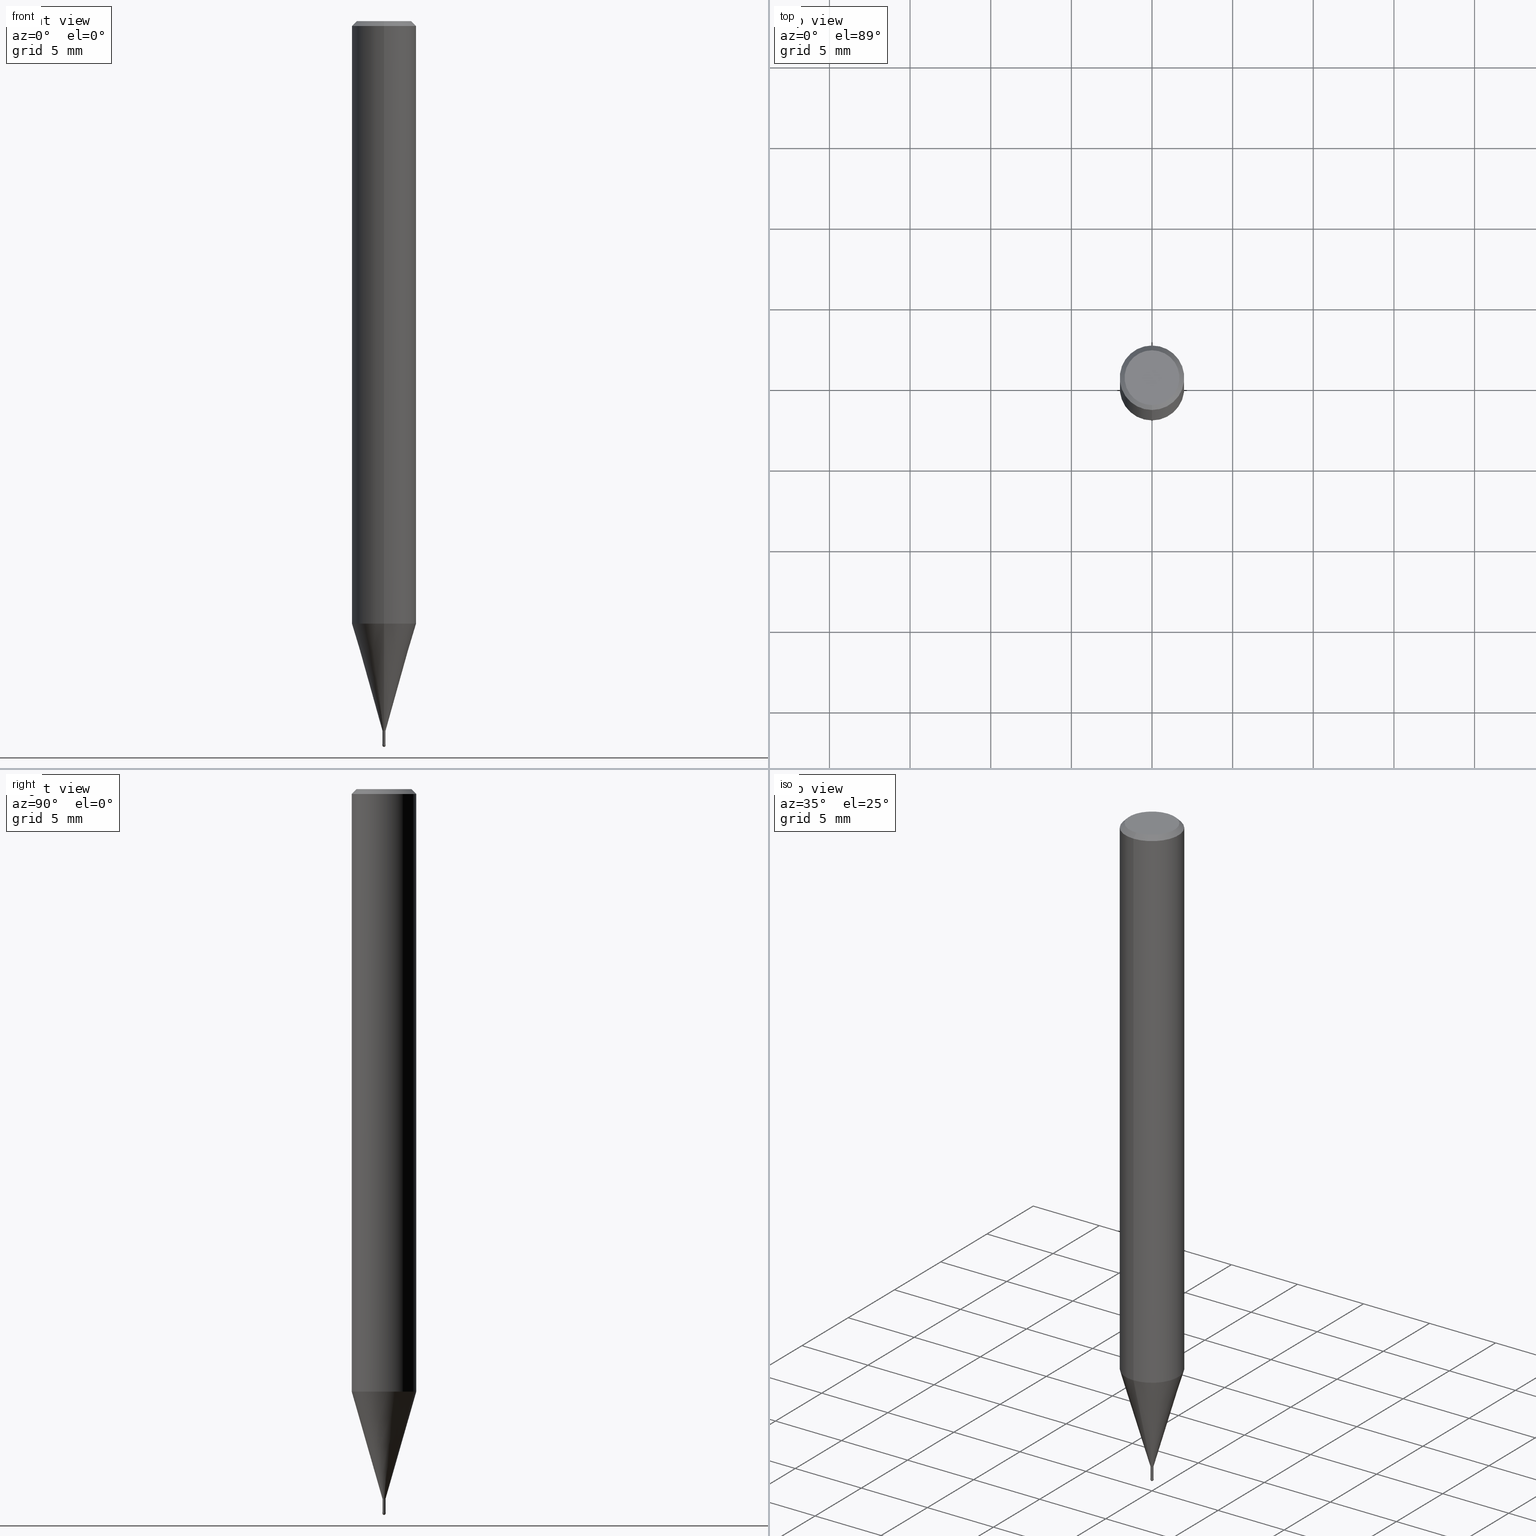
[diagram: canonical four-view strip — front | top / right | iso, engineering-drawing reading convention]
A machine part, canonical four-view strip (front | top / right | iso — engineering-drawing reading convention). The complete STEP part file that produces these views, byte-faithful:
ISO-10303-21;
HEADER;
FILE_DESCRIPTION(('no description'),'unknown implementation level');
FILE_NAME('HSLB2002-010-Huellk.stp','  ',('CIMSOURCE GmbH'),('CADClick - KiM GmbH - www.kimweb.de'),'unknown preprocess','ACIS','unknown authorization');
FILE_SCHEMA(('automotive_design'));
ENDSEC;
DATA;
#1=MECHANICAL_DESIGN_GEOMETRIC_PRESENTATION_REPRESENTATION(' ',(#14,#15,#16,#17,#18,#19,#20,#21,#22,#23,#24,#25,#26,#27,#28,#29,#30,#31,#32,#33,#34,#35,#36,#37,#38,#39,#40,#41,#42,#43,#44,#45,#46,#47,#48,#49,#50,#51,#52,#53,#54,#55,#56,#57,#58,#59,#60,#61,#62,#63,#64,#65,#66,#67,#68,#69,#70,#71,#72,#73,#74),#10);
#2=PRODUCT_DEFINITION_CONTEXT('',#75,'design');
#3=APPLICATION_PROTOCOL_DEFINITION('INTERNATIONAL STANDARD','automotive_design',1994,#75);
#4=PRODUCT_CATEGORY_RELATIONSHIP('NONE','NONE',#76,#77);
#5=SHAPE_DEFINITION_REPRESENTATION(#78,#79);
#6=PRODUCT_DEFINITION_CONTEXT('',#80,'design');
#7=APPLICATION_PROTOCOL_DEFINITION('INTERNATIONAL STANDARD','automotive_design',1994,#80);
#8=PRODUCT_CATEGORY_RELATIONSHIP('NONE','NONE',#81,#82);
#9=SHAPE_DEFINITION_REPRESENTATION(#83,#84);
#10= (GEOMETRIC_REPRESENTATION_CONTEXT(3)GLOBAL_UNCERTAINTY_ASSIGNED_CONTEXT((#87))GLOBAL_UNIT_ASSIGNED_CONTEXT((#89,#90,#91))REPRESENTATION_CONTEXT('NONE','WORKSPACE'));
#14=STYLED_ITEM('',(#93),#94);
#15=STYLED_ITEM('',(#95),#96);
#16=STYLED_ITEM('',(#97),#98);
#17=STYLED_ITEM('',(#99),#100);
#18=STYLED_ITEM('',(#101),#102);
#19=STYLED_ITEM('',(#103),#104);
#20=STYLED_ITEM('',(#105),#106);
#21=STYLED_ITEM('',(#107),#108);
#22=STYLED_ITEM('',(#109),#110);
#23=STYLED_ITEM('',(#111),#112);
#24=STYLED_ITEM('',(#113),#114);
#25=STYLED_ITEM('',(#115),#116);
#26=STYLED_ITEM('',(#117),#118);
#27=STYLED_ITEM('',(#119),#120);
#28=STYLED_ITEM('',(#121),#122);
#29=STYLED_ITEM('',(#123),#124);
#30=STYLED_ITEM('',(#125),#126);
#31=STYLED_ITEM('',(#127),#128);
#32=STYLED_ITEM('',(#129),#130);
#33=STYLED_ITEM('',(#131),#132);
#34=STYLED_ITEM('',(#133),#134);
#35=STYLED_ITEM('',(#135),#136);
#36=STYLED_ITEM('',(#137),#138);
#37=STYLED_ITEM('',(#139),#140);
#38=STYLED_ITEM('',(#141),#142);
#39=STYLED_ITEM('',(#143),#144);
#40=STYLED_ITEM('',(#145),#146);
#41=STYLED_ITEM('',(#147),#148);
#42=STYLED_ITEM('',(#149),#150);
#43=STYLED_ITEM('',(#151),#152);
#44=STYLED_ITEM('',(#153),#154);
#45=STYLED_ITEM('',(#155),#156);
#46=STYLED_ITEM('',(#157),#158);
#47=STYLED_ITEM('',(#159),#160);
#48=STYLED_ITEM('',(#161),#162);
#49=STYLED_ITEM('',(#163),#164);
#50=STYLED_ITEM('',(#165),#166);
#51=STYLED_ITEM('',(#167),#168);
#52=STYLED_ITEM('',(#169),#170);
#53=STYLED_ITEM('',(#171),#172);
#54=STYLED_ITEM('',(#173),#174);
#55=STYLED_ITEM('',(#175),#176);
#56=STYLED_ITEM('',(#177),#178);
#57=STYLED_ITEM('',(#179),#180);
#58=STYLED_ITEM('',(#181),#182);
#59=STYLED_ITEM('',(#183),#184);
#60=STYLED_ITEM('',(#185),#186);
#61=STYLED_ITEM('',(#187),#188);
#62=STYLED_ITEM('',(#189),#190);
#63=STYLED_ITEM('',(#191),#192);
#64=STYLED_ITEM('',(#193),#194);
#65=STYLED_ITEM('',(#195),#196);
#66=STYLED_ITEM('',(#197),#198);
#67=STYLED_ITEM('',(#199),#200);
#68=STYLED_ITEM('',(#201),#202);
#69=STYLED_ITEM('',(#203),#204);
#70=STYLED_ITEM('',(#205),#206);
#71=STYLED_ITEM('',(#207),#208);
#72=STYLED_ITEM('',(#209),#210);
#73=STYLED_ITEM('',(#211),#212);
#74=STYLED_ITEM('',(#213),#214);
#75=APPLICATION_CONTEXT(' ');
#76=PRODUCT_CATEGORY('part','NONE');
#77=PRODUCT_RELATED_PRODUCT_CATEGORY('detail',' ',(#215));
#78=PRODUCT_DEFINITION_SHAPE('NONE','NONE',#216);
#79=ADVANCED_BREP_SHAPE_REPRESENTATION('1',(#196,#217),#10);
#80=APPLICATION_CONTEXT(' ');
#81=PRODUCT_CATEGORY('part','NONE');
#82=PRODUCT_RELATED_PRODUCT_CATEGORY('detail',' ',(#218));
#83=PRODUCT_DEFINITION_SHAPE('NONE','NONE',#219);
#84=ADVANCED_BREP_SHAPE_REPRESENTATION('2',(#198,#220),#10);
#87=UNCERTAINTY_MEASURE_WITH_UNIT(LENGTH_MEASURE(1.0E-006),#89,'','');
#89= (CONVERSION_BASED_UNIT('MILLIMETRE',#223)LENGTH_UNIT()NAMED_UNIT(#226));
#90= (NAMED_UNIT(#228)PLANE_ANGLE_UNIT()SI_UNIT($,.RADIAN.));
#91= (NAMED_UNIT(#228)SOLID_ANGLE_UNIT()SI_UNIT($,.STERADIAN.));
#93=PRESENTATION_STYLE_ASSIGNMENT((#234));
#94=ADVANCED_FACE('',(#235),#236,.T.);
#95=PRESENTATION_STYLE_ASSIGNMENT((#237));
#96=VERTEX_POINT('',#238);
#97=PRESENTATION_STYLE_ASSIGNMENT((#239));
#98=VERTEX_POINT('',#240);
#99=PRESENTATION_STYLE_ASSIGNMENT((#241));
#100=VERTEX_POINT('',#242);
#101=PRESENTATION_STYLE_ASSIGNMENT((#243));
#102=ADVANCED_FACE('',(#244),#245,.T.);
#103=PRESENTATION_STYLE_ASSIGNMENT((#246));
#104=EDGE_CURVE('',#96,#162,#247,.T.);
#105=PRESENTATION_STYLE_ASSIGNMENT((#248));
#106=ADVANCED_FACE('',(#249,#250),#251,.T.);
#107=PRESENTATION_STYLE_ASSIGNMENT((#252));
#108=EDGE_CURVE('',#98,#176,#253,.T.);
#109=PRESENTATION_STYLE_ASSIGNMENT((#254));
#110=ADVANCED_FACE('',(#255),#256,.T.);
#111=PRESENTATION_STYLE_ASSIGNMENT((#257));
#112=VERTEX_POINT('',#258);
#113=PRESENTATION_STYLE_ASSIGNMENT((#259));
#114=ADVANCED_FACE('',(#260),#261,.T.);
#115=PRESENTATION_STYLE_ASSIGNMENT((#262));
#116=EDGE_CURVE('',#112,#208,#263,.T.);
#117=PRESENTATION_STYLE_ASSIGNMENT((#264));
#118=EDGE_CURVE('',#98,#160,#265,.T.);
#119=PRESENTATION_STYLE_ASSIGNMENT((#266));
#120=ADVANCED_FACE('',(#267),#268,.T.);
#121=PRESENTATION_STYLE_ASSIGNMENT((#269));
#122=EDGE_CURVE('',#184,#204,#270,.T.);
#123=PRESENTATION_STYLE_ASSIGNMENT((#271));
#124=EDGE_CURVE('',#204,#184,#272,.T.);
#125=PRESENTATION_STYLE_ASSIGNMENT((#273));
#126=EDGE_CURVE('',#208,#132,#274,.T.);
#127=PRESENTATION_STYLE_ASSIGNMENT((#275));
#128=EDGE_CURVE('',#178,#192,#276,.T.);
#129=PRESENTATION_STYLE_ASSIGNMENT((#277));
#130=ADVANCED_FACE('',(#278),#279,.T.);
#131=PRESENTATION_STYLE_ASSIGNMENT((#280));
#132=VERTEX_POINT('',#281);
#133=PRESENTATION_STYLE_ASSIGNMENT((#282));
#134=EDGE_CURVE('',#132,#174,#283,.T.);
#135=PRESENTATION_STYLE_ASSIGNMENT((#284));
#136=VERTEX_POINT('',#285);
#137=PRESENTATION_STYLE_ASSIGNMENT((#286));
#138=ADVANCED_FACE('',(#287),#288,.T.);
#139=PRESENTATION_STYLE_ASSIGNMENT((#289));
#140=EDGE_CURVE('',#192,#204,#290,.T.);
#141=PRESENTATION_STYLE_ASSIGNMENT((#291));
#142=EDGE_CURVE('',#136,#176,#292,.T.);
#143=PRESENTATION_STYLE_ASSIGNMENT((#293));
#144=ADVANCED_FACE('',(#294),#295,.T.);
#145=PRESENTATION_STYLE_ASSIGNMENT((#296));
#146=EDGE_CURVE('',#184,#178,#297,.T.);
#147=PRESENTATION_STYLE_ASSIGNMENT((#298));
#148=EDGE_CURVE('',#160,#98,#299,.T.);
#149=PRESENTATION_STYLE_ASSIGNMENT((#300));
#150=EDGE_CURVE('',#174,#112,#301,.T.);
#151=PRESENTATION_STYLE_ASSIGNMENT((#302));
#152=ADVANCED_FACE('',(#303),#304,.T.);
#153=PRESENTATION_STYLE_ASSIGNMENT((#305));
#154=EDGE_CURVE('',#112,#174,#306,.T.);
#155=PRESENTATION_STYLE_ASSIGNMENT((#307));
#156=EDGE_CURVE('',#162,#98,#308,.T.);
#157=PRESENTATION_STYLE_ASSIGNMENT((#309));
#158=EDGE_CURVE('',#192,#178,#310,.T.);
#159=PRESENTATION_STYLE_ASSIGNMENT((#311));
#160=VERTEX_POINT('',#312);
#161=PRESENTATION_STYLE_ASSIGNMENT((#313));
#162=VERTEX_POINT('',#314);
#163=PRESENTATION_STYLE_ASSIGNMENT((#315));
#164=VERTEX_POINT('',#316);
#165=PRESENTATION_STYLE_ASSIGNMENT((#317));
#166=ADVANCED_FACE('',(#318),#319,.T.);
#167=PRESENTATION_STYLE_ASSIGNMENT((#320));
#168=ADVANCED_FACE('',(#321),#322,.T.);
#169=PRESENTATION_STYLE_ASSIGNMENT((#323));
#170=ADVANCED_FACE('',(#324),#325,.T.);
#171=PRESENTATION_STYLE_ASSIGNMENT((#326));
#172=EDGE_CURVE('',#160,#96,#327,.T.);
#173=PRESENTATION_STYLE_ASSIGNMENT((#328));
#174=VERTEX_POINT('',#329);
#175=PRESENTATION_STYLE_ASSIGNMENT((#330));
#176=VERTEX_POINT('',#331);
#177=PRESENTATION_STYLE_ASSIGNMENT((#332));
#178=VERTEX_POINT('',#333);
#179=PRESENTATION_STYLE_ASSIGNMENT((#334));
#180=EDGE_CURVE('',#164,#100,#335,.T.);
#181=PRESENTATION_STYLE_ASSIGNMENT((#336));
#182=EDGE_CURVE('',#132,#208,#337,.T.);
#183=PRESENTATION_STYLE_ASSIGNMENT((#338));
#184=VERTEX_POINT('',#339);
#185=PRESENTATION_STYLE_ASSIGNMENT((#340));
#186=ADVANCED_FACE('',(#341),#342,.T.);
#187=PRESENTATION_STYLE_ASSIGNMENT((#343));
#188=EDGE_CURVE('',#176,#136,#344,.T.);
#189=PRESENTATION_STYLE_ASSIGNMENT((#345));
#190=EDGE_CURVE('',#162,#96,#346,.T.);
#191=PRESENTATION_STYLE_ASSIGNMENT((#347));
#192=VERTEX_POINT('',#348);
#193=PRESENTATION_STYLE_ASSIGNMENT((#349));
#194=EDGE_CURVE('',#100,#164,#350,.T.);
#195=PRESENTATION_STYLE_ASSIGNMENT((#351));
#196=MANIFOLD_SOLID_BREP('1',#352);
#197=PRESENTATION_STYLE_ASSIGNMENT((#353));
#198=MANIFOLD_SOLID_BREP('2',#354);
#199=PRESENTATION_STYLE_ASSIGNMENT((#355));
#200=EDGE_CURVE('',#112,#174,#356,.T.);
#201=PRESENTATION_STYLE_ASSIGNMENT((#357));
#202=EDGE_CURVE('',#100,#184,#358,.T.);
#203=PRESENTATION_STYLE_ASSIGNMENT((#359));
#204=VERTEX_POINT('',#360);
#205=PRESENTATION_STYLE_ASSIGNMENT((#361));
#206=ADVANCED_FACE('',(#362),#363,.T.);
#207=PRESENTATION_STYLE_ASSIGNMENT((#364));
#208=VERTEX_POINT('',#365);
#209=PRESENTATION_STYLE_ASSIGNMENT((#366));
#210=ADVANCED_FACE('',(#367),#368,.T.);
#211=PRESENTATION_STYLE_ASSIGNMENT((#369));
#212=EDGE_CURVE('',#204,#164,#370,.T.);
#213=PRESENTATION_STYLE_ASSIGNMENT((#371));
#214=EDGE_CURVE('',#136,#160,#372,.T.);
#215=PRODUCT('1','1','PART-1-DESC',(#373));
#216=PRODUCT_DEFINITION('NONE','NONE',#374,#2);
#217=AXIS2_PLACEMENT_3D('',#375,#376,#377);
#218=PRODUCT('2','2','PART-2-DESC',(#378));
#219=PRODUCT_DEFINITION('NONE','NONE',#379,#6);
#220=AXIS2_PLACEMENT_3D('',#380,#381,#382);
#223=LENGTH_MEASURE_WITH_UNIT(LENGTH_MEASURE(1.0),#383);
#226=DIMENSIONAL_EXPONENTS(1.0,0.0,0.0,0.0,0.0,0.0,0.0);
#228=DIMENSIONAL_EXPONENTS(0.0,0.0,0.0,0.0,0.0,0.0,0.0);
#234=SURFACE_STYLE_USAGE(.BOTH.,#384);
#235=FACE_OUTER_BOUND('',#385,.T.);
#236=CONICAL_SURFACE('',#386,1.04745,0.279233718115795);
#237=POINT_STYLE(' ',#387,POSITIVE_LENGTH_MEASURE(1.0E-006),#388);
#238=CARTESIAN_POINT('',(2.44915147732706E-016,-1.99995,-37.356));
#239=POINT_STYLE(' ',#389,POSITIVE_LENGTH_MEASURE(1.0E-006),#390);
#240=CARTESIAN_POINT('',(0.0,0.09495,-44.0));
#241=POINT_STYLE(' ',#391,POSITIVE_LENGTH_MEASURE(1.0E-006),#392);
#242=CARTESIAN_POINT('',(2.44921270764475E-016,-2.0,-37.356));
#243=SURFACE_STYLE_USAGE(.BOTH.,#393);
#244=FACE_OUTER_BOUND('',#394,.T.);
#245=SPHERICAL_SURFACE('',#395,0.1);
#246=CURVE_STYLE('',#396,POSITIVE_LENGTH_MEASURE(1.0E-006),#397);
#247=CIRCLE('',#398,1.99995);
#248=SURFACE_STYLE_USAGE(.BOTH.,#399);
#249=FACE_OUTER_BOUND('',#400,.T.);
#250=FACE_BOUND('',#401,.T.);
#251=PLANE('',#402);
#252=CURVE_STYLE('',#403,POSITIVE_LENGTH_MEASURE(1.0E-006),#404);
#253=LINE('',#405,#406);
#254=SURFACE_STYLE_USAGE(.BOTH.,#407);
#255=FACE_OUTER_BOUND('',#408,.T.);
#256=SPHERICAL_SURFACE('',#409,0.1);
#257=POINT_STYLE(' ',#410,POSITIVE_LENGTH_MEASURE(1.0E-006),#411);
#258=CARTESIAN_POINT('',(1.22460635382238E-017,-0.1,-44.9));
#259=SURFACE_STYLE_USAGE(.BOTH.,#412);
#260=FACE_OUTER_BOUND('',#413,.T.);
#261=PLANE('',#414);
#262=CURVE_STYLE('',#415,POSITIVE_LENGTH_MEASURE(1.0E-006),#416);
#263=LINE('',#417,#418);
#264=CURVE_STYLE('',#419,POSITIVE_LENGTH_MEASURE(1.0E-006),#420);
#265=CIRCLE('',#421,0.09495);
#266=SURFACE_STYLE_USAGE(.BOTH.,#422);
#267=FACE_OUTER_BOUND('',#423,.T.);
#268=CONICAL_SURFACE('',#424,0.09995,0.00166666512345941);
#269=CURVE_STYLE('',#425,POSITIVE_LENGTH_MEASURE(1.0E-006),#426);
#270=CIRCLE('',#427,2.0);
#271=CURVE_STYLE('',#428,POSITIVE_LENGTH_MEASURE(1.0E-006),#429);
#272=CIRCLE('',#430,2.0);
#273=CURVE_STYLE('',#431,POSITIVE_LENGTH_MEASURE(1.0E-006),#432);
#274=CIRCLE('',#433,0.0999);
#275=CURVE_STYLE('',#434,POSITIVE_LENGTH_MEASURE(1.0E-006),#435);
#276=CIRCLE('',#436,1.7);
#277=SURFACE_STYLE_USAGE(.BOTH.,#437);
#278=FACE_OUTER_BOUND('',#438,.T.);
#279=CYLINDRICAL_SURFACE('',#439,0.09495);
#280=POINT_STYLE(' ',#440,POSITIVE_LENGTH_MEASURE(1.0E-006),#441);
#281=CARTESIAN_POINT('',(0.0,0.0999,-44.84));
#282=CURVE_STYLE('',#442,POSITIVE_LENGTH_MEASURE(1.0E-006),#443);
#283=LINE('',#444,#445);
#284=POINT_STYLE(' ',#446,POSITIVE_LENGTH_MEASURE(1.0E-006),#447);
#285=CARTESIAN_POINT('',(1.16276373295435E-017,-0.09495,-44.84));
#286=SURFACE_STYLE_USAGE(.BOTH.,#448);
#287=FACE_OUTER_BOUND('',#449,.T.);
#288=PLANE('',#450);
#289=CURVE_STYLE('',#451,POSITIVE_LENGTH_MEASURE(1.0E-006),#452);
#290=LINE('',#453,#454);
#291=CURVE_STYLE('',#455,POSITIVE_LENGTH_MEASURE(1.0E-006),#456);
#292=CIRCLE('',#457,0.09495);
#293=SURFACE_STYLE_USAGE(.BOTH.,#458);
#294=FACE_OUTER_BOUND('',#459,.T.);
#295=CYLINDRICAL_SURFACE('',#460,2.0);
#296=CURVE_STYLE('',#461,POSITIVE_LENGTH_MEASURE(1.0E-006),#462);
#297=LINE('',#463,#464);
#298=CURVE_STYLE('',#465,POSITIVE_LENGTH_MEASURE(1.0E-006),#466);
#299=CIRCLE('',#467,0.09495);
#300=CURVE_STYLE('',#468,POSITIVE_LENGTH_MEASURE(1.0E-006),#469);
#301=CIRCLE('',#470,0.1);
#302=SURFACE_STYLE_USAGE(.BOTH.,#471);
#303=FACE_OUTER_BOUND('',#472,.T.);
#304=CYLINDRICAL_SURFACE('',#473,2.0);
#305=CURVE_STYLE('',#474,POSITIVE_LENGTH_MEASURE(1.0E-006),#475);
#306=CIRCLE('',#476,0.1);
#307=CURVE_STYLE('',#477,POSITIVE_LENGTH_MEASURE(1.0E-006),#478);
#308=LINE('',#479,#480);
#309=CURVE_STYLE('',#481,POSITIVE_LENGTH_MEASURE(1.0E-006),#482);
#310=CIRCLE('',#483,1.7);
#311=POINT_STYLE(' ',#484,POSITIVE_LENGTH_MEASURE(1.0E-006),#485);
#312=CARTESIAN_POINT('',(1.16276373295435E-017,-0.09495,-44.0));
#313=POINT_STYLE(' ',#486,POSITIVE_LENGTH_MEASURE(1.0E-006),#487);
#314=CARTESIAN_POINT('',(0.0,1.99995,-37.356));
#315=POINT_STYLE(' ',#488,POSITIVE_LENGTH_MEASURE(1.0E-006),#489);
#316=CARTESIAN_POINT('',(0.0,2.0,-37.356));
#317=SURFACE_STYLE_USAGE(.BOTH.,#490);
#318=FACE_OUTER_BOUND('',#491,.T.);
#319=CONICAL_SURFACE('',#492,0.09995,0.00166666512345941);
#320=SURFACE_STYLE_USAGE(.BOTH.,#493);
#321=FACE_OUTER_BOUND('',#494,.T.);
#322=CONICAL_SURFACE('',#495,1.04745,0.279233718115795);
#323=SURFACE_STYLE_USAGE(.BOTH.,#496);
#324=FACE_OUTER_BOUND('',#497,.T.);
#325=PLANE('',#498);
#326=CURVE_STYLE('',#499,POSITIVE_LENGTH_MEASURE(1.0E-006),#500);
#327=LINE('',#501,#502);
#328=POINT_STYLE(' ',#503,POSITIVE_LENGTH_MEASURE(1.0E-006),#504);
#329=CARTESIAN_POINT('',(0.0,0.1,-44.9));
#330=POINT_STYLE(' ',#505,POSITIVE_LENGTH_MEASURE(1.0E-006),#506);
#331=CARTESIAN_POINT('',(0.0,0.09495,-44.84));
#332=POINT_STYLE(' ',#507,POSITIVE_LENGTH_MEASURE(1.0E-006),#508);
#333=CARTESIAN_POINT('',(2.08183080149804E-016,-1.7,0.0));
#334=CURVE_STYLE('',#509,POSITIVE_LENGTH_MEASURE(1.0E-006),#510);
#335=CIRCLE('',#511,2.0);
#336=CURVE_STYLE('',#512,POSITIVE_LENGTH_MEASURE(1.0E-006),#513);
#337=CIRCLE('',#514,0.0999);
#338=POINT_STYLE(' ',#515,POSITIVE_LENGTH_MEASURE(1.0E-006),#516);
#339=CARTESIAN_POINT('',(2.44921270764475E-016,-2.0,-0.299999999999997));
#340=SURFACE_STYLE_USAGE(.BOTH.,#517);
#341=FACE_OUTER_BOUND('',#518,.T.);
#342=CYLINDRICAL_SURFACE('',#519,0.09495);
#343=CURVE_STYLE('',#520,POSITIVE_LENGTH_MEASURE(1.0E-006),#521);
#344=CIRCLE('',#522,0.09495);
#345=CURVE_STYLE('',#523,POSITIVE_LENGTH_MEASURE(1.0E-006),#524);
#346=CIRCLE('',#525,1.99995);
#347=POINT_STYLE(' ',#526,POSITIVE_LENGTH_MEASURE(1.0E-006),#527);
#348=CARTESIAN_POINT('',(0.0,1.7,0.0));
#349=CURVE_STYLE('',#528,POSITIVE_LENGTH_MEASURE(1.0E-006),#529);
#350=CIRCLE('',#530,2.0);
#351=SURFACE_STYLE_USAGE(.BOTH.,#531);
#352=CLOSED_SHELL('',(#130,#94,#144,#206,#106,#114,#210,#152,#168,#186,#170));
#353=SURFACE_STYLE_USAGE(.BOTH.,#532);
#354=CLOSED_SHELL('',(#110,#166,#138,#120,#102));
#355=CURVE_STYLE('',#533,POSITIVE_LENGTH_MEASURE(1.0E-006),#534);
#356=CIRCLE('',#535,0.1);
#357=CURVE_STYLE('',#536,POSITIVE_LENGTH_MEASURE(1.0E-006),#537);
#358=LINE('',#538,#539);
#359=POINT_STYLE(' ',#540,POSITIVE_LENGTH_MEASURE(1.0E-006),#541);
#360=CARTESIAN_POINT('',(0.0,2.0,-0.299999999999997));
#361=SURFACE_STYLE_USAGE(.BOTH.,#542);
#362=FACE_OUTER_BOUND('',#543,.T.);
#363=CONICAL_SURFACE('',#544,1.85,0.785398163397453);
#364=POINT_STYLE(' ',#545,POSITIVE_LENGTH_MEASURE(1.0E-006),#546);
#365=CARTESIAN_POINT('',(1.22338174746855E-017,-0.0999,-44.84));
#366=SURFACE_STYLE_USAGE(.BOTH.,#547);
#367=FACE_OUTER_BOUND('',#548,.T.);
#368=CONICAL_SURFACE('',#549,1.85,0.785398163397453);
#369=CURVE_STYLE('',#550,POSITIVE_LENGTH_MEASURE(1.0E-006),#551);
#370=LINE('',#552,#553);
#371=CURVE_STYLE('',#554,POSITIVE_LENGTH_MEASURE(1.0E-006),#555);
#372=LINE('',#556,#557);
#373=PRODUCT_CONTEXT('',#75,'mechanical');
#374=PRODUCT_DEFINITION_FORMATION_WITH_SPECIFIED_SOURCE(' ','NONE',#215,.NOT_KNOWN.);
#375=CARTESIAN_POINT('',(0.0,0.0,0.0));
#376=DIRECTION('',(0.0,0.0,1.0));
#377=DIRECTION('',(1.0,0.0,0.0));
#378=PRODUCT_CONTEXT('',#80,'mechanical');
#379=PRODUCT_DEFINITION_FORMATION_WITH_SPECIFIED_SOURCE(' ','NONE',#218,.NOT_KNOWN.);
#380=CARTESIAN_POINT('',(0.0,0.0,0.0));
#381=DIRECTION('',(0.0,0.0,1.0));
#382=DIRECTION('',(1.0,0.0,0.0));
#383= (NAMED_UNIT(#226)LENGTH_UNIT()SI_UNIT(.MILLI.,.METRE.));
#384=SURFACE_SIDE_STYLE('',(#559));
#385=EDGE_LOOP('',(#560,#561,#562,#563));
#386=AXIS2_PLACEMENT_3D('',#564,#565,#566);
#387=PRE_DEFINED_MARKER('');
#388=COLOUR_RGB('',0.498039215803146,0.498039215803146,0.498039215803146);
#389=PRE_DEFINED_MARKER('');
#390=COLOUR_RGB('',0.498039215803146,0.498039215803146,0.498039215803146);
#391=PRE_DEFINED_MARKER('');
#392=COLOUR_RGB('',0.498039215803146,0.498039215803146,0.498039215803146);
#393=SURFACE_SIDE_STYLE('',(#567));
#394=EDGE_LOOP('',(#568,#569));
#395=AXIS2_PLACEMENT_3D('',#570,#571,#572);
#396=DRAUGHTING_PRE_DEFINED_CURVE_FONT('continuous');
#397=COLOUR_RGB('',0.498039215803146,0.498039215803146,0.498039215803146);
#398=AXIS2_PLACEMENT_3D('',#573,#574,#575);
#399=SURFACE_SIDE_STYLE('',(#576));
#400=EDGE_LOOP('',(#577,#578));
#401=EDGE_LOOP('',(#579,#580));
#402=AXIS2_PLACEMENT_3D('',#581,#582,#583);
#403=DRAUGHTING_PRE_DEFINED_CURVE_FONT('continuous');
#404=COLOUR_RGB('',0.498039215803146,0.498039215803146,0.498039215803146);
#405=CARTESIAN_POINT('',(-1.16276373295435E-017,0.09495,-44.42));
#406=VECTOR('',#584,1.0);
#407=SURFACE_SIDE_STYLE('',(#585));
#408=EDGE_LOOP('',(#586,#587));
#409=AXIS2_PLACEMENT_3D('',#588,#589,#590);
#410=PRE_DEFINED_MARKER('');
#411=COLOUR_RGB('',0.800000011920929,0.800000011920929,0.800000011920929);
#412=SURFACE_SIDE_STYLE('',(#591));
#413=EDGE_LOOP('',(#592,#593));
#414=AXIS2_PLACEMENT_3D('',#594,#595,#596);
#415=DRAUGHTING_PRE_DEFINED_CURVE_FONT('continuous');
#416=COLOUR_RGB('',0.800000011920929,0.800000011920929,0.800000011920929);
#417=CARTESIAN_POINT('',(1.22399405064547E-017,-0.09995,-44.87));
#418=VECTOR('',#597,1.0);
#419=DRAUGHTING_PRE_DEFINED_CURVE_FONT('continuous');
#420=COLOUR_RGB('',0.498039215803146,0.498039215803146,0.498039215803146);
#421=AXIS2_PLACEMENT_3D('',#598,#599,#600);
#422=SURFACE_SIDE_STYLE('',(#601));
#423=EDGE_LOOP('',(#602,#603,#604,#605));
#424=AXIS2_PLACEMENT_3D('',#606,#607,#608);
#425=DRAUGHTING_PRE_DEFINED_CURVE_FONT('continuous');
#426=COLOUR_RGB('',0.498039215803146,0.498039215803146,0.498039215803146);
#427=AXIS2_PLACEMENT_3D('',#609,#610,#611);
#428=DRAUGHTING_PRE_DEFINED_CURVE_FONT('continuous');
#429=COLOUR_RGB('',0.498039215803146,0.498039215803146,0.498039215803146);
#430=AXIS2_PLACEMENT_3D('',#612,#613,#614);
#431=DRAUGHTING_PRE_DEFINED_CURVE_FONT('continuous');
#432=COLOUR_RGB('',0.800000011920929,0.800000011920929,0.800000011920929);
#433=AXIS2_PLACEMENT_3D('',#615,#616,#617);
#434=DRAUGHTING_PRE_DEFINED_CURVE_FONT('continuous');
#435=COLOUR_RGB('',0.498039215803146,0.498039215803146,0.498039215803146);
#436=AXIS2_PLACEMENT_3D('',#618,#619,#620);
#437=SURFACE_SIDE_STYLE('',(#621));
#438=EDGE_LOOP('',(#622,#623,#624,#625));
#439=AXIS2_PLACEMENT_3D('',#626,#627,#628);
#440=PRE_DEFINED_MARKER('');
#441=COLOUR_RGB('',0.800000011920929,0.800000011920929,0.800000011920929);
#442=DRAUGHTING_PRE_DEFINED_CURVE_FONT('continuous');
#443=COLOUR_RGB('',0.800000011920929,0.800000011920929,0.800000011920929);
#444=CARTESIAN_POINT('',(-1.22399405064547E-017,0.09995,-44.87));
#445=VECTOR('',#629,1.0);
#446=PRE_DEFINED_MARKER('');
#447=COLOUR_RGB('',0.498039215803146,0.498039215803146,0.498039215803146);
#448=SURFACE_SIDE_STYLE('',(#630));
#449=EDGE_LOOP('',(#631,#632));
#450=AXIS2_PLACEMENT_3D('',#633,#634,#635);
#451=DRAUGHTING_PRE_DEFINED_CURVE_FONT('continuous');
#452=COLOUR_RGB('',0.498039215803146,0.498039215803146,0.498039215803146);
#453=CARTESIAN_POINT('',(-2.2655217545714E-016,1.85,-0.149999999999999));
#454=VECTOR('',#636,1.0);
#455=DRAUGHTING_PRE_DEFINED_CURVE_FONT('continuous');
#456=COLOUR_RGB('',0.498039215803146,0.498039215803146,0.498039215803146);
#457=AXIS2_PLACEMENT_3D('',#637,#638,#639);
#458=SURFACE_SIDE_STYLE('',(#640));
#459=EDGE_LOOP('',(#641,#642,#643,#644));
#460=AXIS2_PLACEMENT_3D('',#645,#646,#647);
#461=DRAUGHTING_PRE_DEFINED_CURVE_FONT('continuous');
#462=COLOUR_RGB('',0.498039215803146,0.498039215803146,0.498039215803146);
#463=CARTESIAN_POINT('',(2.2655217545714E-016,-1.85,-0.149999999999999));
#464=VECTOR('',#648,1.0);
#465=DRAUGHTING_PRE_DEFINED_CURVE_FONT('continuous');
#466=COLOUR_RGB('',0.498039215803146,0.498039215803146,0.498039215803146);
#467=AXIS2_PLACEMENT_3D('',#649,#650,#651);
#468=DRAUGHTING_PRE_DEFINED_CURVE_FONT('continuous');
#469=COLOUR_RGB('',0.800000011920929,0.800000011920929,0.800000011920929);
#470=AXIS2_PLACEMENT_3D('',#652,#653,#654);
#471=SURFACE_SIDE_STYLE('',(#655));
#472=EDGE_LOOP('',(#656,#657,#658,#659));
#473=AXIS2_PLACEMENT_3D('',#660,#661,#662);
#474=DRAUGHTING_PRE_DEFINED_CURVE_FONT('continuous');
#475=COLOUR_RGB('',0.800000011920929,0.800000011920929,0.800000011920929);
#476=AXIS2_PLACEMENT_3D('',#663,#664,#665);
#477=DRAUGHTING_PRE_DEFINED_CURVE_FONT('continuous');
#478=COLOUR_RGB('',0.498039215803146,0.498039215803146,0.498039215803146);
#479=CARTESIAN_POINT('',(-1.28271392531125E-016,1.04745,-40.678));
#480=VECTOR('',#666,1.0);
#481=DRAUGHTING_PRE_DEFINED_CURVE_FONT('continuous');
#482=COLOUR_RGB('',0.498039215803146,0.498039215803146,0.498039215803146);
#483=AXIS2_PLACEMENT_3D('',#667,#668,#669);
#484=PRE_DEFINED_MARKER('');
#485=COLOUR_RGB('',0.498039215803146,0.498039215803146,0.498039215803146);
#486=PRE_DEFINED_MARKER('');
#487=COLOUR_RGB('',0.498039215803146,0.498039215803146,0.498039215803146);
#488=PRE_DEFINED_MARKER('');
#489=COLOUR_RGB('',0.498039215803146,0.498039215803146,0.498039215803146);
#490=SURFACE_SIDE_STYLE('',(#670));
#491=EDGE_LOOP('',(#671,#672,#673,#674));
#492=AXIS2_PLACEMENT_3D('',#675,#676,#677);
#493=SURFACE_SIDE_STYLE('',(#678));
#494=EDGE_LOOP('',(#679,#680,#681,#682));
#495=AXIS2_PLACEMENT_3D('',#683,#684,#685);
#496=SURFACE_SIDE_STYLE('',(#686));
#497=EDGE_LOOP('',(#687,#688));
#498=AXIS2_PLACEMENT_3D('',#689,#690,#691);
#499=DRAUGHTING_PRE_DEFINED_CURVE_FONT('continuous');
#500=COLOUR_RGB('',0.498039215803146,0.498039215803146,0.498039215803146);
#501=CARTESIAN_POINT('',(1.28271392531125E-016,-1.04745,-40.678));
#502=VECTOR('',#692,1.0);
#503=PRE_DEFINED_MARKER('');
#504=COLOUR_RGB('',0.800000011920929,0.800000011920929,0.800000011920929);
#505=PRE_DEFINED_MARKER('');
#506=COLOUR_RGB('',0.498039215803146,0.498039215803146,0.498039215803146);
#507=PRE_DEFINED_MARKER('');
#508=COLOUR_RGB('',0.498039215803146,0.498039215803146,0.498039215803146);
#509=DRAUGHTING_PRE_DEFINED_CURVE_FONT('continuous');
#510=COLOUR_RGB('',0.498039215803146,0.498039215803146,0.498039215803146);
#511=AXIS2_PLACEMENT_3D('',#693,#694,#695);
#512=DRAUGHTING_PRE_DEFINED_CURVE_FONT('continuous');
#513=COLOUR_RGB('',0.800000011920929,0.800000011920929,0.800000011920929);
#514=AXIS2_PLACEMENT_3D('',#696,#697,#698);
#515=PRE_DEFINED_MARKER('');
#516=COLOUR_RGB('',0.498039215803146,0.498039215803146,0.498039215803146);
#517=SURFACE_SIDE_STYLE('',(#699));
#518=EDGE_LOOP('',(#700,#701,#702,#703));
#519=AXIS2_PLACEMENT_3D('',#704,#705,#706);
#520=DRAUGHTING_PRE_DEFINED_CURVE_FONT('continuous');
#521=COLOUR_RGB('',0.498039215803146,0.498039215803146,0.498039215803146);
#522=AXIS2_PLACEMENT_3D('',#707,#708,#709);
#523=DRAUGHTING_PRE_DEFINED_CURVE_FONT('continuous');
#524=COLOUR_RGB('',0.498039215803146,0.498039215803146,0.498039215803146);
#525=AXIS2_PLACEMENT_3D('',#710,#711,#712);
#526=PRE_DEFINED_MARKER('');
#527=COLOUR_RGB('',0.498039215803146,0.498039215803146,0.498039215803146);
#528=DRAUGHTING_PRE_DEFINED_CURVE_FONT('continuous');
#529=COLOUR_RGB('',0.498039215803146,0.498039215803146,0.498039215803146);
#530=AXIS2_PLACEMENT_3D('',#713,#714,#715);
#531=SURFACE_SIDE_STYLE('',(#716));
#532=SURFACE_SIDE_STYLE('',(#717));
#533=DRAUGHTING_PRE_DEFINED_CURVE_FONT('continuous');
#534=COLOUR_RGB('',0.800000011920929,0.800000011920929,0.800000011920929);
#535=AXIS2_PLACEMENT_3D('',#718,#719,#720);
#536=DRAUGHTING_PRE_DEFINED_CURVE_FONT('continuous');
#537=COLOUR_RGB('',0.498039215803146,0.498039215803146,0.498039215803146);
#538=CARTESIAN_POINT('',(2.44921270764475E-016,-2.0,-18.828));
#539=VECTOR('',#721,1.0);
#540=PRE_DEFINED_MARKER('');
#541=COLOUR_RGB('',0.498039215803146,0.498039215803146,0.498039215803146);
#542=SURFACE_SIDE_STYLE('',(#722));
#543=EDGE_LOOP('',(#723,#724,#725,#726));
#544=AXIS2_PLACEMENT_3D('',#727,#728,#729);
#545=PRE_DEFINED_MARKER('');
#546=COLOUR_RGB('',0.800000011920929,0.800000011920929,0.800000011920929);
#547=SURFACE_SIDE_STYLE('',(#730));
#548=EDGE_LOOP('',(#731,#732,#733,#734));
#549=AXIS2_PLACEMENT_3D('',#735,#736,#737);
#550=DRAUGHTING_PRE_DEFINED_CURVE_FONT('continuous');
#551=COLOUR_RGB('',0.498039215803146,0.498039215803146,0.498039215803146);
#552=CARTESIAN_POINT('',(-2.44921270764475E-016,2.0,-18.828));
#553=VECTOR('',#738,1.0);
#554=DRAUGHTING_PRE_DEFINED_CURVE_FONT('continuous');
#555=COLOUR_RGB('',0.498039215803146,0.498039215803146,0.498039215803146);
#556=CARTESIAN_POINT('',(1.16276373295435E-017,-0.09495,-44.42));
#557=VECTOR('',#739,1.0);
#559=SURFACE_STYLE_FILL_AREA(#740);
#560=ORIENTED_EDGE('',*,*,#156,.F.);
#561=ORIENTED_EDGE('',*,*,#190,.T.);
#562=ORIENTED_EDGE('',*,*,#172,.F.);
#563=ORIENTED_EDGE('',*,*,#118,.F.);
#564=CARTESIAN_POINT('',(0.0,0.0,-40.678));
#565=DIRECTION('',(-0.0,-0.0,1.0));
#566=DIRECTION('',(0.0,1.0,0.0));
#567=SURFACE_STYLE_FILL_AREA(#741);
#568=ORIENTED_EDGE('',*,*,#154,.T.);
#569=ORIENTED_EDGE('',*,*,#150,.T.);
#570=CARTESIAN_POINT('',(0.0,0.0,-44.9));
#571=DIRECTION('',(0.0,1.0,0.0));
#572=DIRECTION('',(0.0,0.0,-1.0));
#573=CARTESIAN_POINT('',(0.0,0.0,-37.356));
#574=DIRECTION('',(0.0,0.0,-1.0));
#575=DIRECTION('',(0.0,1.0,0.0));
#576=SURFACE_STYLE_FILL_AREA(#742);
#577=ORIENTED_EDGE('',*,*,#180,.T.);
#578=ORIENTED_EDGE('',*,*,#194,.T.);
#579=ORIENTED_EDGE('',*,*,#190,.F.);
#580=ORIENTED_EDGE('',*,*,#104,.F.);
#581=CARTESIAN_POINT('',(0.0,1.0,-37.356));
#582=DIRECTION('',(0.0,0.0,-1.0));
#583=DIRECTION('',(0.0,1.0,0.0));
#584=DIRECTION('',(0.0,0.0,-1.0));
#585=SURFACE_STYLE_FILL_AREA(#743);
#586=ORIENTED_EDGE('',*,*,#154,.F.);
#587=ORIENTED_EDGE('',*,*,#200,.T.);
#588=CARTESIAN_POINT('',(0.0,0.0,-44.9));
#589=DIRECTION('',(0.0,1.0,0.0));
#590=DIRECTION('',(0.0,0.0,-1.0));
#591=SURFACE_STYLE_FILL_AREA(#744);
#592=ORIENTED_EDGE('',*,*,#158,.F.);
#593=ORIENTED_EDGE('',*,*,#128,.F.);
#594=CARTESIAN_POINT('',(0.0,0.85,0.0));
#595=DIRECTION('',(-0.0,0.0,1.0));
#596=DIRECTION('',(0.0,-1.0,0.0));
#597=DIRECTION('',(-2.041007754973E-019,0.00166666435185672,0.999998611114005));
#598=CARTESIAN_POINT('',(0.0,0.0,-44.0));
#599=DIRECTION('',(0.0,0.0,-1.0));
#600=DIRECTION('',(0.0,1.0,0.0));
#601=SURFACE_STYLE_FILL_AREA(#745);
#602=ORIENTED_EDGE('',*,*,#134,.T.);
#603=ORIENTED_EDGE('',*,*,#200,.F.);
#604=ORIENTED_EDGE('',*,*,#116,.T.);
#605=ORIENTED_EDGE('',*,*,#126,.T.);
#606=CARTESIAN_POINT('',(0.0,0.0,-44.87));
#607=DIRECTION('',(0.0,-0.0,-1.0));
#608=DIRECTION('',(0.0,1.0,0.0));
#609=CARTESIAN_POINT('',(0.0,0.0,-0.299999999999997));
#610=DIRECTION('',(0.0,0.0,-1.0));
#611=DIRECTION('',(0.0,1.0,0.0));
#612=CARTESIAN_POINT('',(0.0,0.0,-0.299999999999997));
#613=DIRECTION('',(0.0,0.0,-1.0));
#614=DIRECTION('',(0.0,1.0,0.0));
#615=CARTESIAN_POINT('',(0.0,0.0,-44.84));
#616=DIRECTION('',(0.0,0.0,-1.0));
#617=DIRECTION('',(0.0,1.0,0.0));
#618=CARTESIAN_POINT('',(0.0,0.0,0.0));
#619=DIRECTION('',(0.0,0.0,-1.0));
#620=DIRECTION('',(0.0,1.0,0.0));
#621=SURFACE_STYLE_FILL_AREA(#746);
#622=ORIENTED_EDGE('',*,*,#108,.F.);
#623=ORIENTED_EDGE('',*,*,#118,.T.);
#624=ORIENTED_EDGE('',*,*,#214,.F.);
#625=ORIENTED_EDGE('',*,*,#188,.F.);
#626=CARTESIAN_POINT('',(0.0,0.0,-44.42));
#627=DIRECTION('',(-0.0,-0.0,1.0));
#628=DIRECTION('',(0.0,1.0,0.0));
#629=DIRECTION('',(-2.041007754973E-019,0.00166666435185672,-0.999998611114005));
#630=SURFACE_STYLE_FILL_AREA(#747);
#631=ORIENTED_EDGE('',*,*,#182,.F.);
#632=ORIENTED_EDGE('',*,*,#126,.F.);
#633=CARTESIAN_POINT('',(0.0,0.04995,-44.84));
#634=DIRECTION('',(-0.0,0.0,1.0));
#635=DIRECTION('',(0.0,-1.0,0.0));
#636=DIRECTION('',(-8.6592745707194E-017,0.707106781186551,-0.707106781186544));
#637=CARTESIAN_POINT('',(0.0,0.0,-44.84));
#638=DIRECTION('',(0.0,0.0,-1.0));
#639=DIRECTION('',(0.0,1.0,0.0));
#640=SURFACE_STYLE_FILL_AREA(#748);
#641=ORIENTED_EDGE('',*,*,#212,.F.);
#642=ORIENTED_EDGE('',*,*,#124,.T.);
#643=ORIENTED_EDGE('',*,*,#202,.F.);
#644=ORIENTED_EDGE('',*,*,#180,.F.);
#645=CARTESIAN_POINT('',(0.0,0.0,-18.828));
#646=DIRECTION('',(-0.0,-0.0,1.0));
#647=DIRECTION('',(0.0,1.0,0.0));
#648=DIRECTION('',(-8.6592745707194E-017,0.707106781186551,0.707106781186544));
#649=CARTESIAN_POINT('',(0.0,0.0,-44.0));
#650=DIRECTION('',(0.0,0.0,-1.0));
#651=DIRECTION('',(0.0,1.0,0.0));
#652=CARTESIAN_POINT('',(0.0,0.0,-44.9));
#653=DIRECTION('',(0.0,0.0,-1.0));
#654=DIRECTION('',(0.0,1.0,0.0));
#655=SURFACE_STYLE_FILL_AREA(#749);
#656=ORIENTED_EDGE('',*,*,#212,.T.);
#657=ORIENTED_EDGE('',*,*,#194,.F.);
#658=ORIENTED_EDGE('',*,*,#202,.T.);
#659=ORIENTED_EDGE('',*,*,#122,.T.);
#660=CARTESIAN_POINT('',(0.0,0.0,-18.828));
#661=DIRECTION('',(-0.0,-0.0,1.0));
#662=DIRECTION('',(0.0,1.0,0.0));
#663=CARTESIAN_POINT('',(0.0,0.0,-44.9));
#664=DIRECTION('',(1.0,0.0,1.22460635382236E-016));
#665=DIRECTION('',(-1.22460635382236E-016,0.0,1.0));
#666=DIRECTION('',(3.37524935540219E-017,-0.275619128127744,-0.961266922457078));
#667=CARTESIAN_POINT('',(0.0,0.0,0.0));
#668=DIRECTION('',(0.0,0.0,-1.0));
#669=DIRECTION('',(0.0,1.0,0.0));
#670=SURFACE_STYLE_FILL_AREA(#750);
#671=ORIENTED_EDGE('',*,*,#134,.F.);
#672=ORIENTED_EDGE('',*,*,#182,.T.);
#673=ORIENTED_EDGE('',*,*,#116,.F.);
#674=ORIENTED_EDGE('',*,*,#150,.F.);
#675=CARTESIAN_POINT('',(0.0,0.0,-44.87));
#676=DIRECTION('',(0.0,-0.0,-1.0));
#677=DIRECTION('',(0.0,1.0,0.0));
#678=SURFACE_STYLE_FILL_AREA(#751);
#679=ORIENTED_EDGE('',*,*,#156,.T.);
#680=ORIENTED_EDGE('',*,*,#148,.F.);
#681=ORIENTED_EDGE('',*,*,#172,.T.);
#682=ORIENTED_EDGE('',*,*,#104,.T.);
#683=CARTESIAN_POINT('',(0.0,0.0,-40.678));
#684=DIRECTION('',(-0.0,-0.0,1.0));
#685=DIRECTION('',(0.0,1.0,0.0));
#686=SURFACE_STYLE_FILL_AREA(#752);
#687=ORIENTED_EDGE('',*,*,#188,.T.);
#688=ORIENTED_EDGE('',*,*,#142,.T.);
#689=CARTESIAN_POINT('',(0.0,0.047475,-44.84));
#690=DIRECTION('',(0.0,0.0,-1.0));
#691=DIRECTION('',(0.0,1.0,0.0));
#692=DIRECTION('',(3.37524935540219E-017,-0.275619128127744,0.961266922457078));
#693=CARTESIAN_POINT('',(0.0,0.0,-37.356));
#694=DIRECTION('',(0.0,0.0,-1.0));
#695=DIRECTION('',(0.0,1.0,0.0));
#696=CARTESIAN_POINT('',(0.0,0.0,-44.84));
#697=DIRECTION('',(0.0,0.0,-1.0));
#698=DIRECTION('',(0.0,1.0,0.0));
#699=SURFACE_STYLE_FILL_AREA(#753);
#700=ORIENTED_EDGE('',*,*,#108,.T.);
#701=ORIENTED_EDGE('',*,*,#142,.F.);
#702=ORIENTED_EDGE('',*,*,#214,.T.);
#703=ORIENTED_EDGE('',*,*,#148,.T.);
#704=CARTESIAN_POINT('',(0.0,0.0,-44.42));
#705=DIRECTION('',(-0.0,-0.0,1.0));
#706=DIRECTION('',(0.0,1.0,0.0));
#707=CARTESIAN_POINT('',(0.0,0.0,-44.84));
#708=DIRECTION('',(0.0,0.0,-1.0));
#709=DIRECTION('',(0.0,1.0,0.0));
#710=CARTESIAN_POINT('',(0.0,0.0,-37.356));
#711=DIRECTION('',(0.0,0.0,-1.0));
#712=DIRECTION('',(0.0,1.0,0.0));
#713=CARTESIAN_POINT('',(0.0,0.0,-37.356));
#714=DIRECTION('',(0.0,0.0,-1.0));
#715=DIRECTION('',(0.0,1.0,0.0));
#716=SURFACE_STYLE_FILL_AREA(#754);
#717=SURFACE_STYLE_FILL_AREA(#755);
#718=CARTESIAN_POINT('',(0.0,0.0,-44.9));
#719=DIRECTION('',(0.0,0.0,-1.0));
#720=DIRECTION('',(0.0,1.0,0.0));
#721=DIRECTION('',(-0.0,-0.0,1.0));
#722=SURFACE_STYLE_FILL_AREA(#756);
#723=ORIENTED_EDGE('',*,*,#140,.F.);
#724=ORIENTED_EDGE('',*,*,#158,.T.);
#725=ORIENTED_EDGE('',*,*,#146,.F.);
#726=ORIENTED_EDGE('',*,*,#124,.F.);
#727=CARTESIAN_POINT('',(0.0,0.0,-0.149999999999999));
#728=DIRECTION('',(0.0,-0.0,-1.0));
#729=DIRECTION('',(0.0,1.0,0.0));
#730=SURFACE_STYLE_FILL_AREA(#757);
#731=ORIENTED_EDGE('',*,*,#140,.T.);
#732=ORIENTED_EDGE('',*,*,#122,.F.);
#733=ORIENTED_EDGE('',*,*,#146,.T.);
#734=ORIENTED_EDGE('',*,*,#128,.T.);
#735=CARTESIAN_POINT('',(0.0,0.0,-0.149999999999999));
#736=DIRECTION('',(0.0,-0.0,-1.0));
#737=DIRECTION('',(0.0,1.0,0.0));
#738=DIRECTION('',(0.0,0.0,-1.0));
#739=DIRECTION('',(-0.0,-0.0,1.0));
#740=FILL_AREA_STYLE('',(#758));
#741=FILL_AREA_STYLE('',(#759));
#742=FILL_AREA_STYLE('',(#760));
#743=FILL_AREA_STYLE('',(#761));
#744=FILL_AREA_STYLE('',(#762));
#745=FILL_AREA_STYLE('',(#763));
#746=FILL_AREA_STYLE('',(#764));
#747=FILL_AREA_STYLE('',(#765));
#748=FILL_AREA_STYLE('',(#766));
#749=FILL_AREA_STYLE('',(#767));
#750=FILL_AREA_STYLE('',(#768));
#751=FILL_AREA_STYLE('',(#769));
#752=FILL_AREA_STYLE('',(#770));
#753=FILL_AREA_STYLE('',(#771));
#754=FILL_AREA_STYLE('',(#772));
#755=FILL_AREA_STYLE('',(#773));
#756=FILL_AREA_STYLE('',(#774));
#757=FILL_AREA_STYLE('',(#775));
#758=FILL_AREA_STYLE_COLOUR('',#776);
#759=FILL_AREA_STYLE_COLOUR('',#777);
#760=FILL_AREA_STYLE_COLOUR('',#778);
#761=FILL_AREA_STYLE_COLOUR('',#779);
#762=FILL_AREA_STYLE_COLOUR('',#780);
#763=FILL_AREA_STYLE_COLOUR('',#781);
#764=FILL_AREA_STYLE_COLOUR('',#782);
#765=FILL_AREA_STYLE_COLOUR('',#783);
#766=FILL_AREA_STYLE_COLOUR('',#784);
#767=FILL_AREA_STYLE_COLOUR('',#785);
#768=FILL_AREA_STYLE_COLOUR('',#786);
#769=FILL_AREA_STYLE_COLOUR('',#787);
#770=FILL_AREA_STYLE_COLOUR('',#788);
#771=FILL_AREA_STYLE_COLOUR('',#789);
#772=FILL_AREA_STYLE_COLOUR('',#790);
#773=FILL_AREA_STYLE_COLOUR('',#791);
#774=FILL_AREA_STYLE_COLOUR('',#792);
#775=FILL_AREA_STYLE_COLOUR('',#793);
#776=COLOUR_RGB('',0.498039215803146,0.498039215803146,0.498039215803146);
#777=COLOUR_RGB('',0.800000011920929,0.800000011920929,0.800000011920929);
#778=COLOUR_RGB('',0.498039215803146,0.498039215803146,0.498039215803146);
#779=COLOUR_RGB('',0.800000011920929,0.800000011920929,0.800000011920929);
#780=COLOUR_RGB('',0.498039215803146,0.498039215803146,0.498039215803146);
#781=COLOUR_RGB('',0.800000011920929,0.800000011920929,0.800000011920929);
#782=COLOUR_RGB('',0.498039215803146,0.498039215803146,0.498039215803146);
#783=COLOUR_RGB('',0.800000011920929,0.800000011920929,0.800000011920929);
#784=COLOUR_RGB('',0.498039215803146,0.498039215803146,0.498039215803146);
#785=COLOUR_RGB('',0.498039215803146,0.498039215803146,0.498039215803146);
#786=COLOUR_RGB('',0.800000011920929,0.800000011920929,0.800000011920929);
#787=COLOUR_RGB('',0.498039215803146,0.498039215803146,0.498039215803146);
#788=COLOUR_RGB('',0.498039215803146,0.498039215803146,0.498039215803146);
#789=COLOUR_RGB('',0.498039215803146,0.498039215803146,0.498039215803146);
#790=COLOUR_RGB('',0.498039215803146,0.498039215803146,0.498039215803146);
#791=COLOUR_RGB('',0.800000011920929,0.800000011920929,0.800000011920929);
#792=COLOUR_RGB('',0.498039215803146,0.498039215803146,0.498039215803146);
#793=COLOUR_RGB('',0.498039215803146,0.498039215803146,0.498039215803146);
#794=AXIS2_PLACEMENT_3D('PCS',#795,#796,#797);
#795=CARTESIAN_POINT('',(0.0,0.0,0.0));
#796=DIRECTION('',(0.0,0.0,1.0));
#797=DIRECTION('',(1.0,0.0,0.0));
#798=AXIS2_PLACEMENT_3D('CIP',#799,#800,#801);
#799=CARTESIAN_POINT('',(0.0,0.0,-45.0));
#800=DIRECTION('',(0.0,0.0,1.0));
#801=DIRECTION('',(1.0,0.0,0.0));
#802=AXIS2_PLACEMENT_3D('CRP',#803,#804,#805);
#803=CARTESIAN_POINT('',(-0.1,0.0,-45.0));
#804=DIRECTION('',(0.0,0.0,1.0));
#805=DIRECTION('',(1.0,0.0,0.0));
#806=AXIS2_PLACEMENT_3D('MCS',#807,#808,#809);
#807=CARTESIAN_POINT('',(0.0,0.0,-37.356));
#808=DIRECTION('',(0.0,0.0,1.0));
#809=DIRECTION('',(1.0,0.0,0.0));
#810=CONSTRUCTIVE_GEOMETRY_REPRESENTATION_RELATIONSHIP('coordinate systems',$,#79,#811);
#811=CONSTRUCTIVE_GEOMETRY_REPRESENTATION('coordinate systems',(#794,#798,#802,#806),#10);
ENDSEC;
END-ISO-10303-21;
